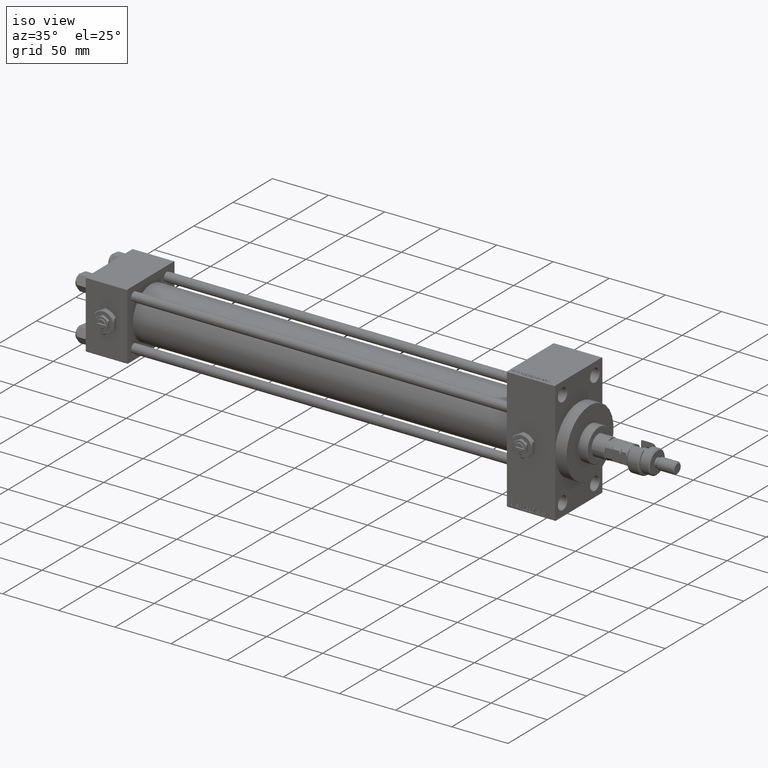
[diagram: clean part render]
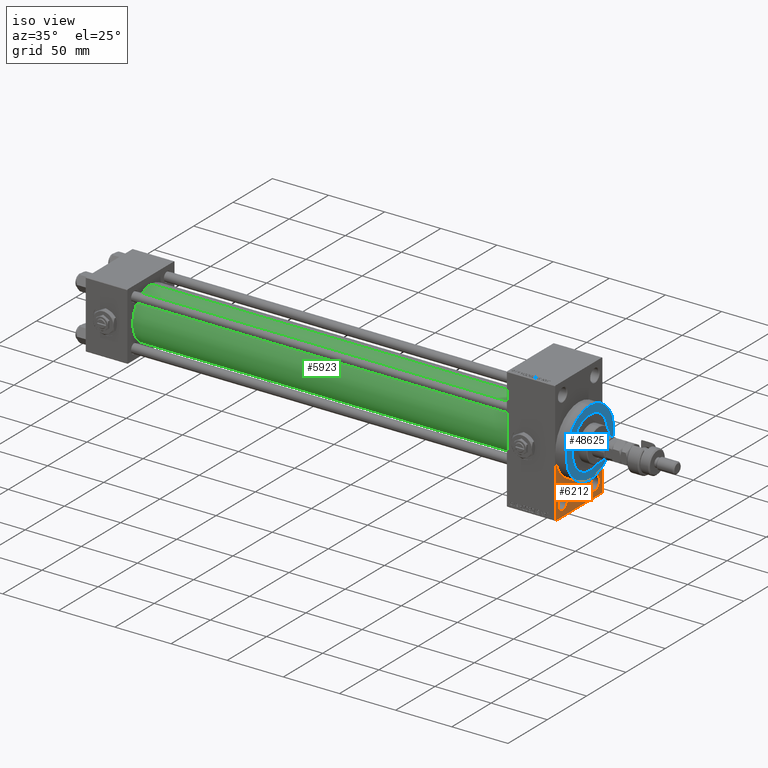
[diagram: same view with three faces highlighted in distinct colors, each labeled with its STEP entity id]
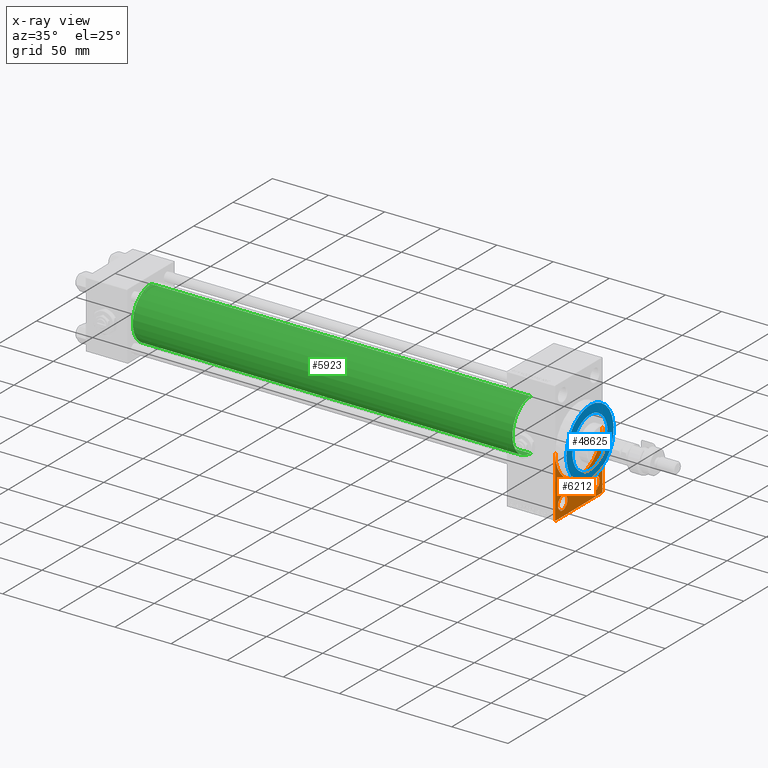
[diagram: x-ray of the same camera — body ghosted, the three highlighted faces saturated]
A machine part, iso view with three faces highlighted in distinct colors.
The next image is the same camera in x-ray (body ghosted, the three faces saturated) — at least one of them is partly hidden behind the body in this view.
Their STEP definitions:

[orange] entity #6212 — the highlighted planar face has unit normal (-1, 0, 0).
#234 = CARTESIAN_POINT ( 'NONE',  ( 418.0000000000000000, -20.50000000000000000, -43.50000000000000000 ) ) ;
#259 = VECTOR ( 'NONE', #21678, 1000.000000000000000 ) ;
#635 = EDGE_CURVE ( 'NONE', #35321, #6147, #29595, .T. ) ;
#910 = CARTESIAN_POINT ( 'NONE',  ( 418.0000000000000000, 0.000000000000000000, 0.000000000000000000 ) ) ;
#1071 = CIRCLE ( 'NONE', #17910, 5.999999999999950262 ) ;
#2284 = EDGE_CURVE ( 'NONE', #6147, #35321, #1071, .T. ) ;
#2678 = LINE ( 'NONE', #17722, #18973 ) ;
#3935 = DIRECTION ( 'NONE',  ( -1.000000000000000000, 0.000000000000000000, -0.000000000000000000 ) ) ;
#4017 = CARTESIAN_POINT ( 'NONE',  ( 418.0000000000000000, 29.99999999999999645, -53.99999999999993605 ) ) ;
#4502 = EDGE_CURVE ( 'NONE', #8302, #30715, #47461, .T. ) ;
#4751 = CIRCLE ( 'NONE', #21579, 5.999999999999950262 ) ;
#5656 = DIRECTION ( 'NONE',  ( -1.000000000000000000, 0.000000000000000000, -0.000000000000000000 ) ) ;
#6054 = ORIENTED_EDGE ( 'NONE', *, *, #635, .T. ) ;
#6147 = VERTEX_POINT ( 'NONE', #17622 ) ;
#6212 = ADVANCED_FACE ( 'NONE', ( #23647, #43650, #15746 ), #31805, .F. ) ;
#6257 = VERTEX_POINT ( 'NONE', #44152 ) ;
#6334 = CARTESIAN_POINT ( 'NONE',  ( 418.0000000000000000, 20.50000000000000000, -49.49999999999995026 ) ) ;
#6351 = AXIS2_PLACEMENT_3D ( 'NONE', #910, #16998, #9347 ) ;
#6557 = EDGE_CURVE ( 'NONE', #41133, #40858, #27352, .T. ) ;
#8302 = VERTEX_POINT ( 'NONE', #48701 ) ;
#8728 = ORIENTED_EDGE ( 'NONE', *, *, #4502, .T. ) ;
#9347 = DIRECTION ( 'NONE',  ( 0.000000000000000000, 0.000000000000000000, -1.000000000000000000 ) ) ;
#9359 = CARTESIAN_POINT ( 'NONE',  ( 418.0000000000000000, 20.50000000000000000, -43.50000000000000000 ) ) ;
#9400 = ORIENTED_EDGE ( 'NONE', *, *, #6557, .F. ) ;
#9651 = EDGE_LOOP ( 'NONE', ( #22561, #8728, #27505, #26720, #32140, #9400, #27913 ) ) ;
#12239 = CIRCLE ( 'NONE', #6351, 30.00000000000000000 ) ;
#12449 = DIRECTION ( 'NONE',  ( 0.000000000000000000, 0.000000000000000000, 1.000000000000000000 ) ) ;
#13220 = CARTESIAN_POINT ( 'NONE',  ( 418.0000000000000000, 20.50000000000000000, -43.50000000000000000 ) ) ;
#13796 = EDGE_LOOP ( 'NONE', ( #6054, #40743 ) ) ;
#13800 = VECTOR ( 'NONE', #51152, 1000.000000000000000 ) ;
#14720 = AXIS2_PLACEMENT_3D ( 'NONE', #47106, #35755, #16008 ) ;
#15174 = DIRECTION ( 'NONE',  ( 1.000000000000000000, 0.000000000000000000, 0.000000000000000000 ) ) ;
#15746 = FACE_OUTER_BOUND ( 'NONE', #9651, .T. ) ;
#16008 = DIRECTION ( 'NONE',  ( -0.000000000000000000, 0.000000000000000000, 1.000000000000000000 ) ) ;
#16998 = DIRECTION ( 'NONE',  ( 1.000000000000000000, 0.000000000000000000, 0.000000000000000000 ) ) ;
#17466 = LINE ( 'NONE', #49587, #259 ) ;
#17622 = CARTESIAN_POINT ( 'NONE',  ( 418.0000000000000000, 20.50000000000000000, -37.50000000000004974 ) ) ;
#17722 = CARTESIAN_POINT ( 'NONE',  ( 418.0000000000000000, 29.99999999999999645, -54.49999999999999289 ) ) ;
#17910 = AXIS2_PLACEMENT_3D ( 'NONE', #13220, #44819, #12449 ) ;
#18230 = DIRECTION ( 'NONE',  ( 0.000000000000000000, 0.000000000000000000, 1.000000000000000000 ) ) ;
#18239 = DIRECTION ( 'NONE',  ( 0.000000000000000000, -1.000000000000000000, -1.156482317317871478E-16 ) ) ;
#18973 = VECTOR ( 'NONE', #18239, 1000.000000000000000 ) ;
#19191 = CARTESIAN_POINT ( 'NONE',  ( 418.0000000000000000, 30.00000000000000000, 0.000000000000000000 ) ) ;
#21579 = AXIS2_PLACEMENT_3D ( 'NONE', #234, #3935, #31345 ) ;
#21678 = DIRECTION ( 'NONE',  ( 0.000000000000000000, 0.000000000000000000, -1.000000000000000000 ) ) ;
#22561 = ORIENTED_EDGE ( 'NONE', *, *, #24664, .T. ) ;
#23597 = LINE ( 'NONE', #45337, #24940 ) ;
#23647 = FACE_BOUND ( 'NONE', #31360, .T. ) ;
#23722 = EDGE_CURVE ( 'NONE', #25664, #6257, #29666, .T. ) ;
#24268 = CARTESIAN_POINT ( 'NONE',  ( 418.0000000000000000, -29.49999999999994671, -54.50000000000000000 ) ) ;
#24271 = CARTESIAN_POINT ( 'NONE',  ( 418.0000000000000000, 29.99999999999999645, 54.49999999999999289 ) ) ;
#24664 = EDGE_CURVE ( 'NONE', #35379, #8302, #17466, .T. ) ;
#24940 = VECTOR ( 'NONE', #40601, 1000.000000000000114 ) ;
#25664 = VERTEX_POINT ( 'NONE', #40617 ) ;
#26720 = ORIENTED_EDGE ( 'NONE', *, *, #35209, .T. ) ;
#27352 = CIRCLE ( 'NONE', #44164, 30.00000000000000000 ) ;
#27505 = ORIENTED_EDGE ( 'NONE', *, *, #32839, .F. ) ;
#27805 = DIRECTION ( 'NONE',  ( 0.000000000000000000, 0.000000000000000000, -1.000000000000000000 ) ) ;
#27913 = ORIENTED_EDGE ( 'NONE', *, *, #32434, .F. ) ;
#29595 = CIRCLE ( 'NONE', #33811, 5.999999999999950262 ) ;
#29666 = CIRCLE ( 'NONE', #44816, 5.999999999999950262 ) ;
#30052 = CARTESIAN_POINT ( 'NONE',  ( 418.0000000000000000, -30.00000000000000000, 0.000000000000000000 ) ) ;
#30715 = VERTEX_POINT ( 'NONE', #50318 ) ;
#31345 = DIRECTION ( 'NONE',  ( 0.000000000000000000, 0.000000000000000000, 1.000000000000000000 ) ) ;
#31360 = EDGE_LOOP ( 'NONE', ( #41618, #31887 ) ) ;
#31805 = PLANE ( 'NONE',  #14720 ) ;
#31887 = ORIENTED_EDGE ( 'NONE', *, *, #23722, .T. ) ;
#32140 = ORIENTED_EDGE ( 'NONE', *, *, #33038, .F. ) ;
#32434 = EDGE_CURVE ( 'NONE', #35379, #41133, #12239, .T. ) ;
#32839 = EDGE_CURVE ( 'NONE', #37133, #30715, #2678, .T. ) ;
#33038 = EDGE_CURVE ( 'NONE', #40858, #42611, #48997, .T. ) ;
#33596 = DIRECTION ( 'NONE',  ( 0.000000000000000000, 0.000000000000000000, 1.000000000000000000 ) ) ;
#33811 = AXIS2_PLACEMENT_3D ( 'NONE', #9359, #5656, #33596 ) ;
#34294 = CARTESIAN_POINT ( 'NONE',  ( 418.0000000000000000, -20.50000000000000000, -43.50000000000000000 ) ) ;
#35209 = EDGE_CURVE ( 'NONE', #37133, #42611, #23597, .T. ) ;
#35321 = VERTEX_POINT ( 'NONE', #6334 ) ;
#35379 = VERTEX_POINT ( 'NONE', #30052 ) ;
#35755 = DIRECTION ( 'NONE',  ( -1.000000000000000000, 0.000000000000000000, -0.000000000000000000 ) ) ;
#36446 = CARTESIAN_POINT ( 'NONE',  ( 418.0000000000000000, 29.49999999999993960, -54.49999999999999289 ) ) ;
#37133 = VERTEX_POINT ( 'NONE', #36446 ) ;
#40316 = DIRECTION ( 'NONE',  ( 0.000000000000000000, 0.000000000000000000, -1.000000000000000000 ) ) ;
#40601 = DIRECTION ( 'NONE',  ( -0.000000000000000000, 0.7071067811865474617, 0.7071067811865474617 ) ) ;
#40617 = CARTESIAN_POINT ( 'NONE',  ( 418.0000000000000000, -20.50000000000000000, -37.50000000000004974 ) ) ;
#40743 = ORIENTED_EDGE ( 'NONE', *, *, #2284, .T. ) ;
#40858 = VERTEX_POINT ( 'NONE', #19191 ) ;
#41133 = VERTEX_POINT ( 'NONE', #47048 ) ;
#41618 = ORIENTED_EDGE ( 'NONE', *, *, #49375, .T. ) ;
#42534 = CARTESIAN_POINT ( 'NONE',  ( 418.0000000000000000, 0.000000000000000000, 0.000000000000000000 ) ) ;
#42611 = VERTEX_POINT ( 'NONE', #4017 ) ;
#43347 = VECTOR ( 'NONE', #40316, 1000.000000000000000 ) ;
#43650 = FACE_BOUND ( 'NONE', #13796, .T. ) ;
#44152 = CARTESIAN_POINT ( 'NONE',  ( 418.0000000000000000, -20.50000000000000000, -49.49999999999995026 ) ) ;
#44164 = AXIS2_PLACEMENT_3D ( 'NONE', #42534, #15174, #27805 ) ;
#44816 = AXIS2_PLACEMENT_3D ( 'NONE', #34294, #49830, #18230 ) ;
#44819 = DIRECTION ( 'NONE',  ( -1.000000000000000000, 0.000000000000000000, -0.000000000000000000 ) ) ;
#45337 = CARTESIAN_POINT ( 'NONE',  ( 418.0000000000000000, 29.99999999999999645, -53.99999999999993605 ) ) ;
#47048 = CARTESIAN_POINT ( 'NONE',  ( 418.0000000000000000, 3.673940397442059178E-15, -30.00000000000000000 ) ) ;
#47106 = CARTESIAN_POINT ( 'NONE',  ( 418.0000000000000000, 0.000000000000000000, 0.000000000000000000 ) ) ;
#47461 = LINE ( 'NONE', #24268, #13800 ) ;
#48701 = CARTESIAN_POINT ( 'NONE',  ( 418.0000000000000000, -30.00000000000000000, -53.99999999999992895 ) ) ;
#48997 = LINE ( 'NONE', #24271, #43347 ) ;
#49375 = EDGE_CURVE ( 'NONE', #6257, #25664, #4751, .T. ) ;
#49587 = CARTESIAN_POINT ( 'NONE',  ( 418.0000000000000000, -30.00000000000000000, 54.50000000000000000 ) ) ;
#49830 = DIRECTION ( 'NONE',  ( -1.000000000000000000, 0.000000000000000000, -0.000000000000000000 ) ) ;
#50318 = CARTESIAN_POINT ( 'NONE',  ( 418.0000000000000000, -29.49999999999994671, -54.50000000000000000 ) ) ;
#51152 = DIRECTION ( 'NONE',  ( 0.000000000000000000, 0.7071067811865352493, -0.7071067811865597852 ) ) ;

[blue] entity #48625 — the highlighted planar face has unit normal (1, 0, 0).
#474 = CARTESIAN_POINT ( 'NONE',  ( 428.0000000000000000, 0.000000000000000000, 0.000000000000000000 ) ) ;
#1606 = EDGE_CURVE ( 'NONE', #13780, #8234, #32155, .T. ) ;
#1718 = DIRECTION ( 'NONE',  ( 0.000000000000000000, 0.000000000000000000, -1.000000000000000000 ) ) ;
#1722 = DIRECTION ( 'NONE',  ( 1.000000000000000000, 0.000000000000000000, 0.000000000000000000 ) ) ;
#3288 = CIRCLE ( 'NONE', #4924, 22.50000000000000355 ) ;
#4924 = AXIS2_PLACEMENT_3D ( 'NONE', #17814, #1722, #45982 ) ;
#4960 = DIRECTION ( 'NONE',  ( 1.000000000000000000, 0.000000000000000000, 0.000000000000000000 ) ) ;
#5102 = CARTESIAN_POINT ( 'NONE',  ( 428.0000000000000000, 0.000000000000000000, 30.00000000000000000 ) ) ;
#5960 = VERTEX_POINT ( 'NONE', #5102 ) ;
#7397 = ORIENTED_EDGE ( 'NONE', *, *, #1606, .F. ) ;
#8234 = VERTEX_POINT ( 'NONE', #42163 ) ;
#8314 = EDGE_LOOP ( 'NONE', ( #7397, #32602 ) ) ;
#8886 = CIRCLE ( 'NONE', #22487, 30.00000000000000000 ) ;
#9441 = AXIS2_PLACEMENT_3D ( 'NONE', #474, #4960, #16573 ) ;
#9904 = PLANE ( 'NONE',  #29121 ) ;
#13780 = VERTEX_POINT ( 'NONE', #25567 ) ;
#13847 = FACE_OUTER_BOUND ( 'NONE', #25449, .T. ) ;
#15870 = ORIENTED_EDGE ( 'NONE', *, *, #37243, .T. ) ;
#16573 = DIRECTION ( 'NONE',  ( 0.000000000000000000, 0.000000000000000000, -1.000000000000000000 ) ) ;
#17814 = CARTESIAN_POINT ( 'NONE',  ( 428.0000000000000000, 0.000000000000000000, 0.000000000000000000 ) ) ;
#21243 = CARTESIAN_POINT ( 'NONE',  ( 428.0000000000000000, 0.000000000000000000, 0.000000000000000000 ) ) ;
#22342 = CARTESIAN_POINT ( 'NONE',  ( 428.0000000000000000, 3.673940397442059178E-15, -30.00000000000000000 ) ) ;
#22487 = AXIS2_PLACEMENT_3D ( 'NONE', #27979, #28740, #40589 ) ;
#24186 = CIRCLE ( 'NONE', #29216, 30.00000000000000000 ) ;
#25449 = EDGE_LOOP ( 'NONE', ( #28245, #15870 ) ) ;
#25567 = CARTESIAN_POINT ( 'NONE',  ( 428.0000000000000000, 0.000000000000000000, -22.50000000000000355 ) ) ;
#27979 = CARTESIAN_POINT ( 'NONE',  ( 428.0000000000000000, 0.000000000000000000, 0.000000000000000000 ) ) ;
#28245 = ORIENTED_EDGE ( 'NONE', *, *, #47724, .T. ) ;
#28740 = DIRECTION ( 'NONE',  ( 1.000000000000000000, 0.000000000000000000, 0.000000000000000000 ) ) ;
#29121 = AXIS2_PLACEMENT_3D ( 'NONE', #21243, #50197, #1718 ) ;
#29216 = AXIS2_PLACEMENT_3D ( 'NONE', #34835, #46952, #50377 ) ;
#32155 = CIRCLE ( 'NONE', #9441, 22.50000000000000355 ) ;
#32602 = ORIENTED_EDGE ( 'NONE', *, *, #40161, .F. ) ;
#34130 = FACE_BOUND ( 'NONE', #8314, .T. ) ;
#34835 = CARTESIAN_POINT ( 'NONE',  ( 428.0000000000000000, 0.000000000000000000, 0.000000000000000000 ) ) ;
#37243 = EDGE_CURVE ( 'NONE', #39877, #5960, #24186, .T. ) ;
#39877 = VERTEX_POINT ( 'NONE', #22342 ) ;
#40161 = EDGE_CURVE ( 'NONE', #8234, #13780, #3288, .T. ) ;
#40589 = DIRECTION ( 'NONE',  ( 0.000000000000000000, 0.000000000000000000, -1.000000000000000000 ) ) ;
#42163 = CARTESIAN_POINT ( 'NONE',  ( 428.0000000000000000, 2.755455298081545172E-15, 22.50000000000000355 ) ) ;
#45982 = DIRECTION ( 'NONE',  ( 0.000000000000000000, 0.000000000000000000, -1.000000000000000000 ) ) ;
#46952 = DIRECTION ( 'NONE',  ( 1.000000000000000000, 0.000000000000000000, 0.000000000000000000 ) ) ;
#47724 = EDGE_CURVE ( 'NONE', #5960, #39877, #8886, .T. ) ;
#48625 = ADVANCED_FACE ( 'NONE', ( #34130, #13847 ), #9904, .T. ) ;
#50197 = DIRECTION ( 'NONE',  ( 1.000000000000000000, 0.000000000000000000, 0.000000000000000000 ) ) ;
#50377 = DIRECTION ( 'NONE',  ( 0.000000000000000000, 0.000000000000000000, -1.000000000000000000 ) ) ;

[green] entity #5923 — the highlighted cylindrical surface (edge-blend (fillet) strip) has radius 23 mm, axis along (-1, -0, -0).
#742 = CARTESIAN_POINT ( 'NONE',  ( 36.99999999999997868, -2.602085213965210642E-15, 0.000000000000000000 ) ) ;
#921 = EDGE_CURVE ( 'NONE', #4285, #3357, #17737, .T. ) ;
#3357 = VERTEX_POINT ( 'NONE', #50606 ) ;
#4285 = VERTEX_POINT ( 'NONE', #25354 ) ;
#5923 = ADVANCED_FACE ( 'NONE', ( #24874 ), #20938, .T. ) ;
#10548 = ORIENTED_EDGE ( 'NONE', *, *, #921, .F. ) ;
#10617 = EDGE_LOOP ( 'NONE', ( #10548, #42394, #11037, #24530 ) ) ;
#11037 = ORIENTED_EDGE ( 'NONE', *, *, #38085, .T. ) ;
#11979 = DIRECTION ( 'NONE',  ( -1.000000000000000000, -0.000000000000000000, -0.000000000000000000 ) ) ;
#13771 = CARTESIAN_POINT ( 'NONE',  ( 375.0000000000000000, -2.602085213965210642E-15, 23.00000000000000000 ) ) ;
#14853 = DIRECTION ( 'NONE',  ( 1.000000000000000000, 0.000000000000000000, 0.000000000000000000 ) ) ;
#17372 = VERTEX_POINT ( 'NONE', #27023 ) ;
#17737 = LINE ( 'NONE', #33788, #27131 ) ;
#18561 = AXIS2_PLACEMENT_3D ( 'NONE', #742, #45502, #44470 ) ;
#18882 = EDGE_CURVE ( 'NONE', #17372, #3357, #34540, .T. ) ;
#20938 = CYLINDRICAL_SURFACE ( 'NONE', #50878, 23.00000000000000000 ) ;
#24530 = ORIENTED_EDGE ( 'NONE', *, *, #18882, .T. ) ;
#24874 = FACE_OUTER_BOUND ( 'NONE', #10617, .T. ) ;
#25354 = CARTESIAN_POINT ( 'NONE',  ( 375.0000000000000000, 2.146024240737016609E-16, -23.00000000000000000 ) ) ;
#26710 = CARTESIAN_POINT ( 'NONE',  ( 375.0000000000000000, -2.602085213965210642E-15, 0.000000000000000000 ) ) ;
#27023 = CARTESIAN_POINT ( 'NONE',  ( 36.99999999999997868, -2.602085213965210642E-15, 23.00000000000000000 ) ) ;
#27131 = VECTOR ( 'NONE', #29832, 1000.000000000000000 ) ;
#29832 = DIRECTION ( 'NONE',  ( -1.000000000000000000, -0.000000000000000000, -0.000000000000000000 ) ) ;
#33788 = CARTESIAN_POINT ( 'NONE',  ( 375.0000000000000000, 2.146024240737016609E-16, -23.00000000000000000 ) ) ;
#33793 = LINE ( 'NONE', #13771, #42701 ) ;
#34540 = CIRCLE ( 'NONE', #18561, 23.00000000000000000 ) ;
#36466 = CARTESIAN_POINT ( 'NONE',  ( 375.0000000000000000, -2.602085213965210642E-15, 0.000000000000000000 ) ) ;
#36982 = DIRECTION ( 'NONE',  ( 0.000000000000000000, 0.000000000000000000, 1.000000000000000000 ) ) ;
#37230 = CARTESIAN_POINT ( 'NONE',  ( 375.0000000000000000, -2.602085213965210642E-15, 23.00000000000000000 ) ) ;
#38085 = EDGE_CURVE ( 'NONE', #48914, #17372, #33793, .T. ) ;
#41560 = EDGE_CURVE ( 'NONE', #48914, #4285, #49482, .T. ) ;
#42394 = ORIENTED_EDGE ( 'NONE', *, *, #41560, .F. ) ;
#42701 = VECTOR ( 'NONE', #45900, 1000.000000000000000 ) ;
#43269 = DIRECTION ( 'NONE',  ( 0.000000000000000000, 0.000000000000000000, -1.000000000000000000 ) ) ;
#44470 = DIRECTION ( 'NONE',  ( 0.000000000000000000, 0.000000000000000000, 1.000000000000000000 ) ) ;
#45502 = DIRECTION ( 'NONE',  ( 1.000000000000000000, -0.000000000000000000, 0.000000000000000000 ) ) ;
#45900 = DIRECTION ( 'NONE',  ( -1.000000000000000000, -0.000000000000000000, -0.000000000000000000 ) ) ;
#48914 = VERTEX_POINT ( 'NONE', #37230 ) ;
#49482 = CIRCLE ( 'NONE', #50427, 23.00000000000000000 ) ;
#50427 = AXIS2_PLACEMENT_3D ( 'NONE', #26710, #14853, #43269 ) ;
#50606 = CARTESIAN_POINT ( 'NONE',  ( 36.99999999999997868, 2.146024240737016609E-16, -23.00000000000000000 ) ) ;
#50878 = AXIS2_PLACEMENT_3D ( 'NONE', #36466, #11979, #36982 ) ;